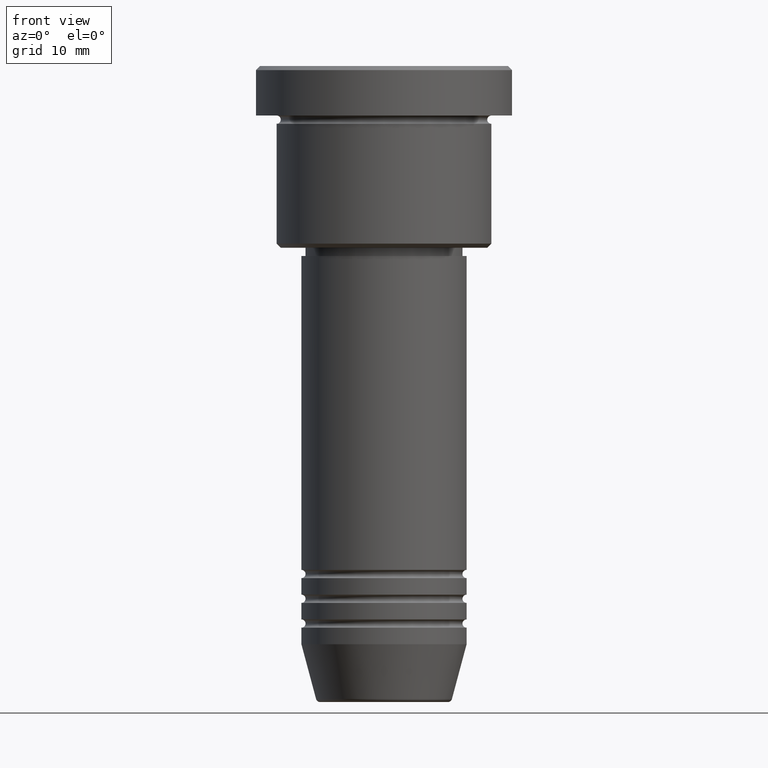
[diagram: clean part render]
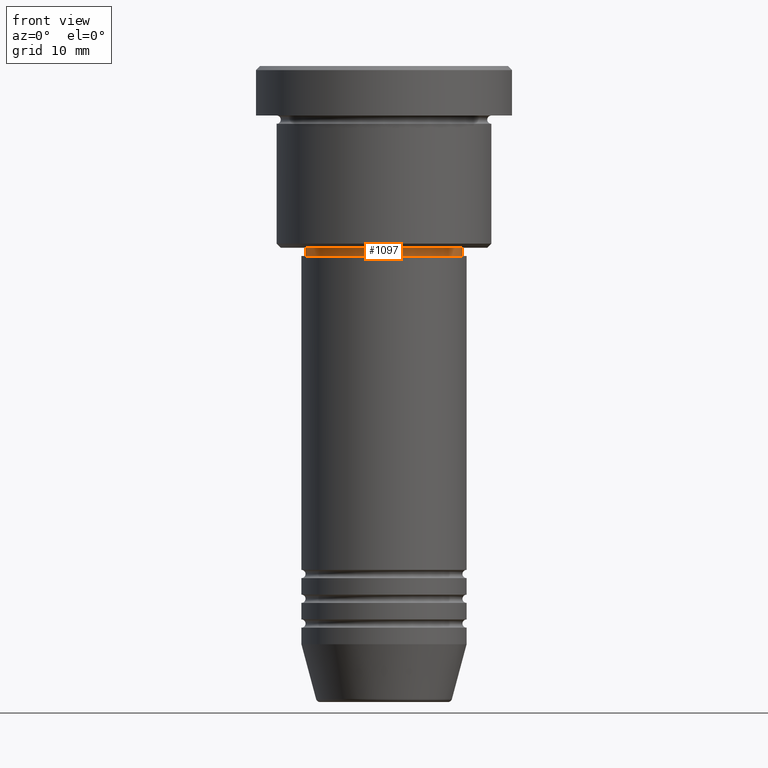
[diagram: same view with one face highlighted and labeled with its STEP entity id]
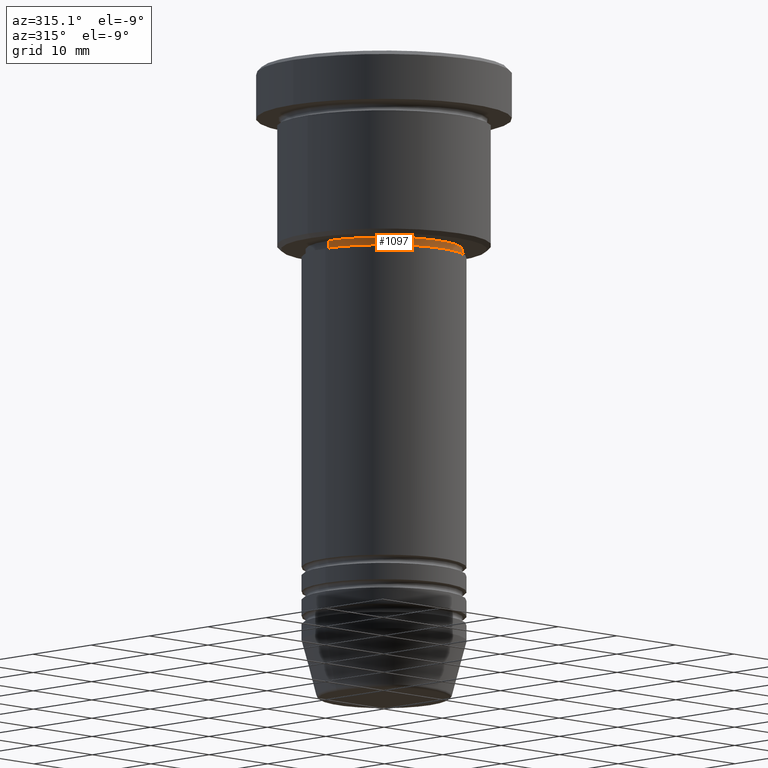
[diagram: same view with one face highlighted and labeled with its STEP entity id]
A machine part, front view. The second image highlights one B-rep face of the part: STEP entity #1097.
A second angle (auxiliary view) of the same face is appended — the face is thin or edge-on in the first view.
In plain terms, the highlighted cylindrical surface (partial cylindrical patch) has radius 9.5 mm, axis along (-0, -0, 1).
Its self-contained STEP definition (entity closure, byte-faithful):
#15 = EDGE_LOOP ( 'NONE', ( #203, #751, #734, #689 ) ) ;
#44 = VERTEX_POINT ( 'NONE', #864 ) ;
#58 = VECTOR ( 'NONE', #936, 1000.000000000000000 ) ;
#63 = CARTESIAN_POINT ( 'NONE',  ( 9.500000000000000000, 0.000000000000000000, -23.00000000000000711 ) ) ;
#74 = CARTESIAN_POINT ( 'NONE',  ( -9.500000000000000000, 1.163414459189985485E-15, 0.000000000000000000 ) ) ;
#90 = CARTESIAN_POINT ( 'NONE',  ( 0.000000000000000000, 0.000000000000000000, 0.000000000000000000 ) ) ;
#173 = AXIS2_PLACEMENT_3D ( 'NONE', #1007, #631, #726 ) ;
#191 = CIRCLE ( 'NONE', #492, 9.500000000000000000 ) ;
#203 = ORIENTED_EDGE ( 'NONE', *, *, #426, .F. ) ;
#204 = EDGE_CURVE ( 'NONE', #1133, #466, #1084, .T. ) ;
#266 = CARTESIAN_POINT ( 'NONE',  ( -9.500000000000000000, 1.163414459189985485E-15, -23.00000000000000711 ) ) ;
#313 = VERTEX_POINT ( 'NONE', #485 ) ;
#330 = LINE ( 'NONE', #74, #819 ) ;
#355 = EDGE_CURVE ( 'NONE', #466, #313, #659, .T. ) ;
#426 = EDGE_CURVE ( 'NONE', #1133, #44, #330, .T. ) ;
#463 = DIRECTION ( 'NONE',  ( 1.000000000000000000, 0.000000000000000000, 0.000000000000000000 ) ) ;
#466 = VERTEX_POINT ( 'NONE', #63 ) ;
#485 = CARTESIAN_POINT ( 'NONE',  ( 9.500000000000000000, 0.000000000000000000, -22.00000000000001066 ) ) ;
#492 = AXIS2_PLACEMENT_3D ( 'NONE', #989, #814, #908 ) ;
#532 = CYLINDRICAL_SURFACE ( 'NONE', #637, 9.500000000000000000 ) ;
#573 = EDGE_CURVE ( 'NONE', #44, #313, #191, .T. ) ;
#631 = DIRECTION ( 'NONE',  ( -0.000000000000000000, -0.000000000000000000, 1.000000000000000000 ) ) ;
#637 = AXIS2_PLACEMENT_3D ( 'NONE', #90, #717, #463 ) ;
#659 = LINE ( 'NONE', #1022, #58 ) ;
#689 = ORIENTED_EDGE ( 'NONE', *, *, #573, .F. ) ;
#717 = DIRECTION ( 'NONE',  ( -0.000000000000000000, -0.000000000000000000, 1.000000000000000000 ) ) ;
#721 = FACE_OUTER_BOUND ( 'NONE', #15, .T. ) ;
#726 = DIRECTION ( 'NONE',  ( 1.000000000000000000, 0.000000000000000000, 0.000000000000000000 ) ) ;
#734 = ORIENTED_EDGE ( 'NONE', *, *, #355, .T. ) ;
#751 = ORIENTED_EDGE ( 'NONE', *, *, #204, .T. ) ;
#814 = DIRECTION ( 'NONE',  ( -0.000000000000000000, -0.000000000000000000, 1.000000000000000000 ) ) ;
#819 = VECTOR ( 'NONE', #963, 1000.000000000000000 ) ;
#864 = CARTESIAN_POINT ( 'NONE',  ( -9.500000000000000000, 1.163414459189985485E-15, -22.00000000000001066 ) ) ;
#908 = DIRECTION ( 'NONE',  ( 1.000000000000000000, 0.000000000000000000, 0.000000000000000000 ) ) ;
#936 = DIRECTION ( 'NONE',  ( -0.000000000000000000, -0.000000000000000000, 1.000000000000000000 ) ) ;
#963 = DIRECTION ( 'NONE',  ( -0.000000000000000000, -0.000000000000000000, 1.000000000000000000 ) ) ;
#989 = CARTESIAN_POINT ( 'NONE',  ( 0.000000000000000000, 0.000000000000000000, -22.00000000000001066 ) ) ;
#1007 = CARTESIAN_POINT ( 'NONE',  ( 0.000000000000000000, 0.000000000000000000, -23.00000000000000711 ) ) ;
#1022 = CARTESIAN_POINT ( 'NONE',  ( 9.500000000000000000, 0.000000000000000000, 0.000000000000000000 ) ) ;
#1084 = CIRCLE ( 'NONE', #173, 9.500000000000000000 ) ;
#1097 = ADVANCED_FACE ( 'NONE', ( #721 ), #532, .T. ) ;
#1133 = VERTEX_POINT ( 'NONE', #266 ) ;